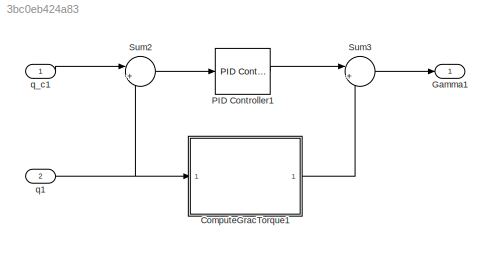
MODEL slx_3bc0eb424a83
KIND model
CONFIG AbsTol = auto
CONFIG FixedStep = auto
CONFIG MaxStep = auto
CONFIG MinStep = auto
CONFIG RelTol = 1e-3
CONFIG SampleTimeConstraint = Unconstrained
CONFIG Solver = VariableStepAuto
CONFIG SolverMode = Auto
CONFIG SolverName = VariableStepAuto
CONFIG StartTime = 0.0
CONFIG StopTime = 10.0
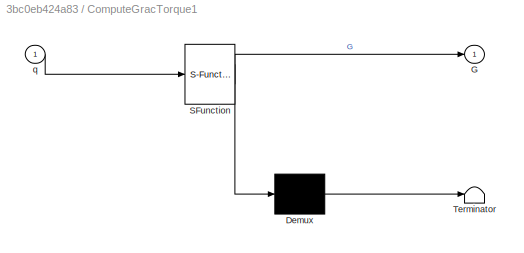
BLOCK [SubSystem] ComputeGracTorque1
  ErrorFcn = Stateflow.Translate.translate
  PermitHierarchicalResolution = ExplicitOnly
  Ports = [1, 1]
  RequestExecContextInheritance = off
  SFBlockType = MATLAB Function
  TreatAsAtomicUnit = on
  Variant = off
BLOCK [Demux] ComputeGracTorque1/ Demux 
  Outputs = 1
  Ports = [1, 1]
BLOCK [S-Function] ComputeGracTorque1/ SFunction 
  EnableBusSupport = on
  FunctionName = sf_sfun
  PortCounts = [1 2]
  Ports = [1, 2]
  SFunctionDeploymentMode = off
  Tag = Stateflow S-Function SimulinkQ20_controle 1
BLOCK [Terminator] ComputeGracTorque1/ Terminator 
BLOCK [Outport] ComputeGracTorque1/G
  IconDisplay = Port number
BLOCK [Inport] ComputeGracTorque1/q
  IconDisplay = Port number
BLOCK [Outport] Gamma1
  IconDisplay = Port number
BLOCK [Reference] PID Controller1  REF=simulink/Continuous/PID Controller
  Ports = [1, 1]
  SourceBlock = simulink/Continuous/PID Controller
  SourceType = PID 1dof
BLOCK [Sum] Sum2
  IconShape = round
  InputSameDT = off
  Inputs = |+-
  OutDataTypeStr = Inherit: Inherit via internal rule
  Ports = [2, 1]
  SaturateOnIntegerOverflow = off
BLOCK [Sum] Sum3
  IconShape = round
  InputSameDT = off
  Inputs = |++
  OutDataTypeStr = Inherit: Inherit via internal rule
  Ports = [2, 1]
  SaturateOnIntegerOverflow = off
BLOCK [Inport] q1
  IconDisplay = Port number
  Port = 2
BLOCK [Inport] q_c1
  IconDisplay = Port number
LINE ComputeGracTorque1:1 -> Sum3:2
LINE PID Controller1:1 -> Sum3:1
LINE Sum2:1 -> PID Controller1:1
LINE Sum3:1 -> Gamma1:1
NET q1:1 -> ComputeGracTorque1:1, Sum2:2
LINE q_c1:1 -> Sum2:1
note: NET lines group one-source signal fan-out (src -> all destinations, sorted); 1:1 wires keep LINE
CHART ComputeGracTorque1 states=1 transitions=1
  STATE_LABEL 'eML_blk_kernel()'
  STATE_LABEL 'SCRIPT:\nfunction G = ComputeGravTorque(q)\n\n    %Parameters\n    m=[15 10 1 7 1 0.5];\n    x_G1 = 0; y_G1 = 0; z_G1 = -0.25;\n    x_G2 = 0.35; y_G2 = 0; z_G2 = 0;\n    x_G3 = 0; y_G3 = -0.1; z_G3 = 0;\n    x_G4 = 0; y_G4 = 0; z_G4 = 0;\n    x_G5 = 0; y_G5 = 0; z_G5 = 0;\n    x_G6 = 0; y_G6 = 0; z_G6 = 0;\n    x_G = [x_G1 x_G2 x_G3 x_G4 x_G5 x_G6];\n    y_G = [y_G1 y_G2 y_G3 y_G4 y_G5 y_G6];\n    z_G = [z_G1 ...<+527ch>'
